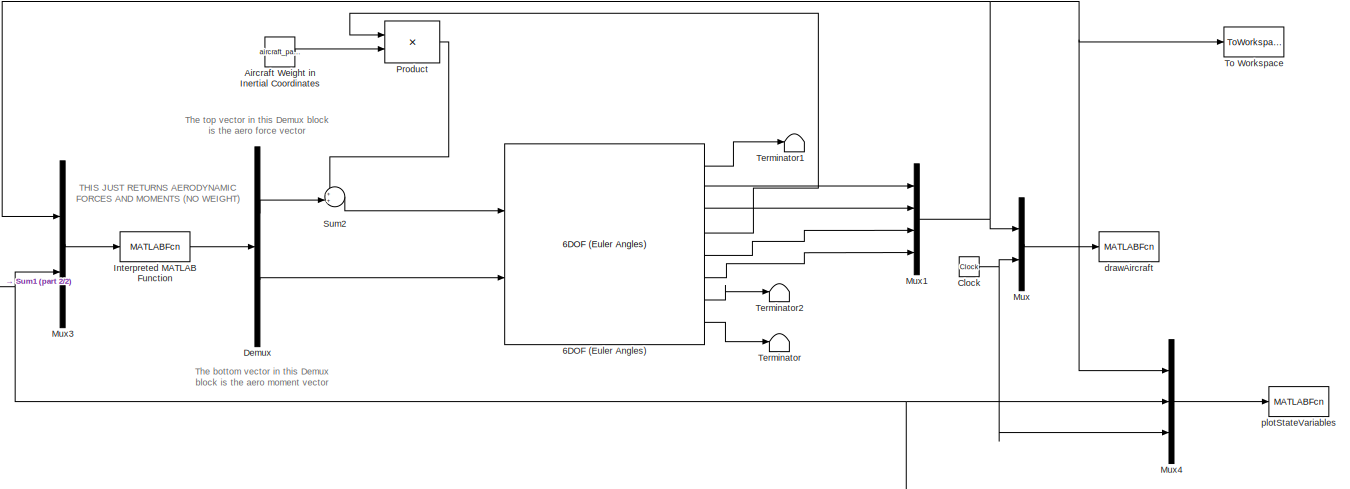
[diagram: root canvas - part 1/2, most of the canvas]
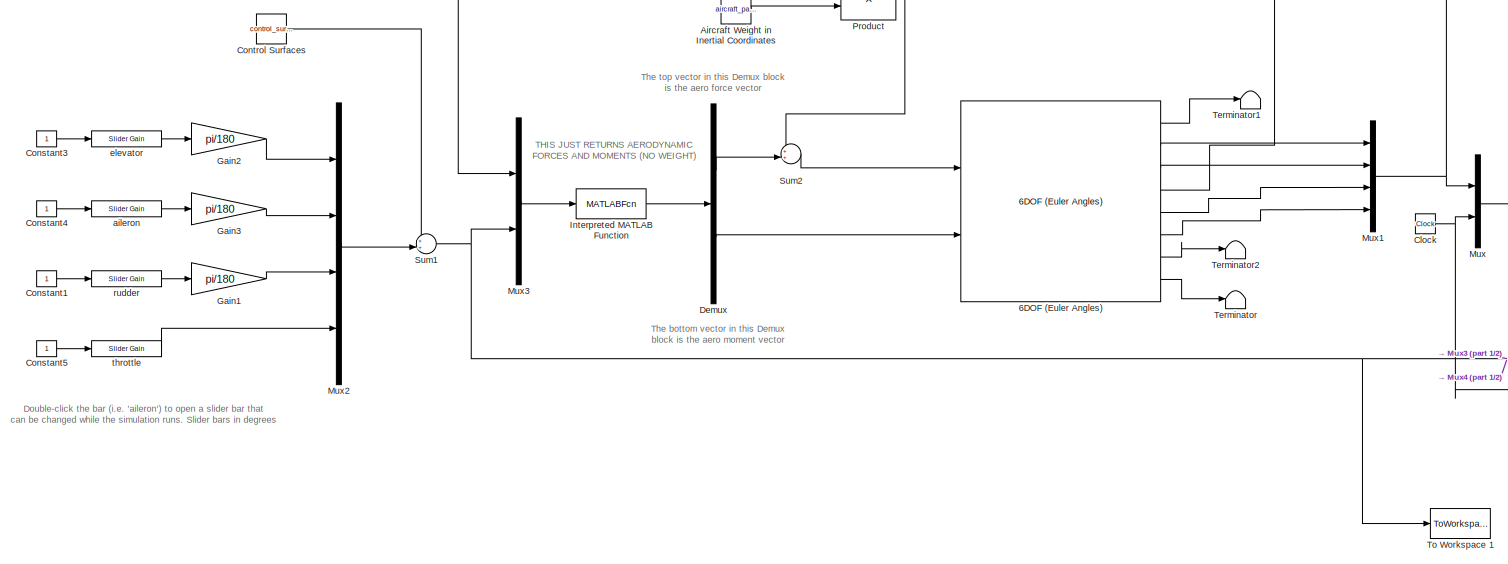
[diagram: root canvas - part 2/2, most of the canvas]
MODEL slx_e54da7dcac68
KIND model
CONFIG AbsTol = auto
CONFIG FixedStep = auto
CONFIG MaxStep = auto
CONFIG MinStep = auto
CONFIG RelTol = 1e-3
CONFIG SampleTimeConstraint = Unconstrained
CONFIG Solver = ode45
CONFIG SolverMode = Auto
CONFIG SolverName = ode45
CONFIG StartTime = 0.0
CONFIG StopTime = 10000
BLOCK [Reference] 6DOF (Euler Angles)  REF=aerolib6dof2/6DOF (Euler Angles)
  Ports = [2, 8]
  SourceBlock = aerolib6dof2/6DOF (Euler Angles)
  SourceType = 6DOF EoM (Body Axis)
  Vm_0 = velocity_body
  eul_0 = euler_angles
  inertia = inertia_matrix
  inertia_e = eye(3)
  inertia_f = 2*eye(3)
  k_quat = 1.0
  mass_0 = aircraft_parameters.m
  mass_e = 0.5
  mass_f = 2.0
  mtype = Fixed
  pm_0 = omega_body
  rep = Euler Angles
  units = Metric (MKS)
  vre_flag = on
  xme_0 = position_inertial
BLOCK [Constant] Aircraft Weight in Inertial Coordinates
  Value = aircraft_parameters.IW
BLOCK [Clock] Clock
BLOCK [Constant] Constant1
BLOCK [Constant] Constant3
BLOCK [Constant] Constant4
BLOCK [Constant] Constant5
BLOCK [Constant] Control Surfaces
  Value = control_surfaces_trim
BLOCK [Demux] Demux
  DisplayOption = bar
  Outputs = 2
  Ports = [1, 2]
BLOCK [Gain] Gain1
  Gain = pi/180
  OutDataTypeStr = Inherit: Inherit via internal rule
  ParamDataTypeStr = Inherit: Inherit via internal rule
  SaturateOnIntegerOverflow = off
BLOCK [Gain] Gain2
  Gain = pi/180
  OutDataTypeStr = Inherit: Inherit via internal rule
  ParamDataTypeStr = Inherit: Inherit via internal rule
  SaturateOnIntegerOverflow = off
BLOCK [Gain] Gain3
  Gain = pi/180
  OutDataTypeStr = Inherit: Inherit via internal rule
  ParamDataTypeStr = Inherit: Inherit via internal rule
  SaturateOnIntegerOverflow = off
BLOCK [MATLABFcn] Interpreted MATLAB Function
  MATLABFcn = S_AeroForcesAndMoments(u, aircraft_parameters)
  OutputDimensions = 6
  Ports = [1, 1]
BLOCK [Mux] Mux
  DisplayOption = bar
  Inputs = 2
  Ports = [2, 1]
BLOCK [Mux] Mux1
  DisplayOption = bar
  Ports = [4, 1]
BLOCK [Mux] Mux2
  DisplayOption = bar
  Ports = [4, 1]
BLOCK [Mux] Mux3
  DisplayOption = bar
  Inputs = 2
  Ports = [2, 1]
BLOCK [Mux] Mux4
  DisplayOption = bar
  Inputs = 3
  Ports = [3, 1]
BLOCK [Product] Product
  InputSameDT = off
  Multiplication = Matrix(*)
  OutDataTypeStr = Inherit: Inherit via internal rule
  Ports = [2, 1]
  RndMeth = Floor
  SaturateOnIntegerOverflow = off
BLOCK [Sum] Sum1
  IconShape = round
  InputSameDT = off
  Inputs = ++|
  OutDataTypeStr = Inherit: Inherit via internal rule
  Ports = [2, 1]
  SaturateOnIntegerOverflow = off
BLOCK [Sum] Sum2
  IconShape = round
  InputSameDT = off
  Inputs = ++|
  OutDataTypeStr = Inherit: Inherit via internal rule
  Ports = [2, 1]
  SaturateOnIntegerOverflow = off
BLOCK [Terminator] Terminator
BLOCK [Terminator] Terminator1
BLOCK [Terminator] Terminator2
BLOCK [ToWorkspace] To Workspace
  FixptAsFi = on
  MaxDataPoints = inf
  Ports = [1]
  SampleTime = -1
  Save2DSignal = 3-D array (concatenate along third dimension)
  SaveFormat = Timeseries
  VariableName = aircraft_state_array
BLOCK [ToWorkspace] To Workspace 1
  FixptAsFi = on
  MaxDataPoints = inf
  Ports = [1]
  SampleTime = -1
  Save2DSignal = 3-D array (concatenate along third dimension)
  SaveFormat = Timeseries
  VariableName = control_input_array
BLOCK [Reference] aileron  REF=simulink/Math
Operations/Slider
Gain
  Ports = [1, 1]
  SourceBlock = simulink/Math\nOperations/Slider\nGain
  SourceType = Slider Gain
  gain = 0
  high = 180
  low = -180
BLOCK [MATLABFcn] drawAircraft
  MATLABFcn = drawAircraft(u,pts)
  OutputDimensions = 0
  Ports = [1]
BLOCK [Reference] elevator  REF=simulink/Math
Operations/Slider
Gain
  Ports = [1, 1]
  SourceBlock = simulink/Math\nOperations/Slider\nGain
  SourceType = Slider Gain
  gain = 0
  high = 180
  low = -180
BLOCK [MATLABFcn] plotStateVariables
  MATLABFcn = PlotStateVariables(u)
  OutputDimensions = 0
  Ports = [1]
BLOCK [Reference] rudder  REF=simulink/Math
Operations/Slider
Gain
  Ports = [1, 1]
  SourceBlock = simulink/Math\nOperations/Slider\nGain
  SourceType = Slider Gain
  gain = 0
  high = 180
  low = -180
BLOCK [Reference] throttle  REF=simulink/Math
Operations/Slider
Gain
  Ports = [1, 1]
  SourceBlock = simulink/Math\nOperations/Slider\nGain
  SourceType = Slider Gain
  gain = 0
  high = 1
  low = 0
ANNOTATION (root): Double-click the bar (i.e. 'aileron') to open a slider bar that can be changed while the simulation runs. Slider bars in degrees
ANNOTATION (root): THIS JUST RETURNS AERODYNAMIC FORCES AND MOMENTS (NO WEIGHT)
ANNOTATION (root): The bottom vector in this Demux block is the aero moment vector
ANNOTATION (root): The top vector in this Demux block is the aero force vector
LINE 6DOF (Euler Angles):1 -> Terminator1:1
LINE 6DOF (Euler Angles):2 -> Mux1:1
LINE 6DOF (Euler Angles):3 -> Mux1:2
LINE 6DOF (Euler Angles):4 -> Product:1
LINE 6DOF (Euler Angles):5 -> Mux1:3
LINE 6DOF (Euler Angles):6 -> Mux1:4
LINE 6DOF (Euler Angles):7 -> Terminator2:1
LINE 6DOF (Euler Angles):8 -> Terminator:1
LINE Aircraft Weight in Inertial Coordinates:1 -> Product:2
NET Clock:1 -> Mux4:3, Mux:2
LINE Constant1:1 -> rudder:1
LINE Constant3:1 -> elevator:1
LINE Constant4:1 -> aileron:1
LINE Constant5:1 -> throttle:1
LINE Control Surfaces:1 -> Sum1:1
LINE Demux:1 -> Sum2:2
LINE Demux:2 -> 6DOF (Euler Angles):2
LINE Gain1:1 -> Mux2:3
LINE Gain2:1 -> Mux2:1
LINE Gain3:1 -> Mux2:2
LINE Interpreted MATLAB Function:1 -> Demux:1
NET Mux1:1 -> Mux3:1, Mux4:1, Mux:1, To Workspace:1
LINE Mux2:1 -> Sum1:2
LINE Mux3:1 -> Interpreted MATLAB Function:1
LINE Mux4:1 -> plotStateVariables:1
LINE Mux:1 -> drawAircraft:1
LINE Product:1 -> Sum2:1
NET Sum1:1 -> Mux3:2, Mux4:2, To Workspace 1:1
LINE Sum2:1 -> 6DOF (Euler Angles):1
LINE aileron:1 -> Gain3:1
LINE elevator:1 -> Gain2:1
LINE rudder:1 -> Gain1:1
LINE throttle:1 -> Mux2:4
note: NET lines group one-source signal fan-out (src -> all destinations, sorted); 1:1 wires keep LINE
